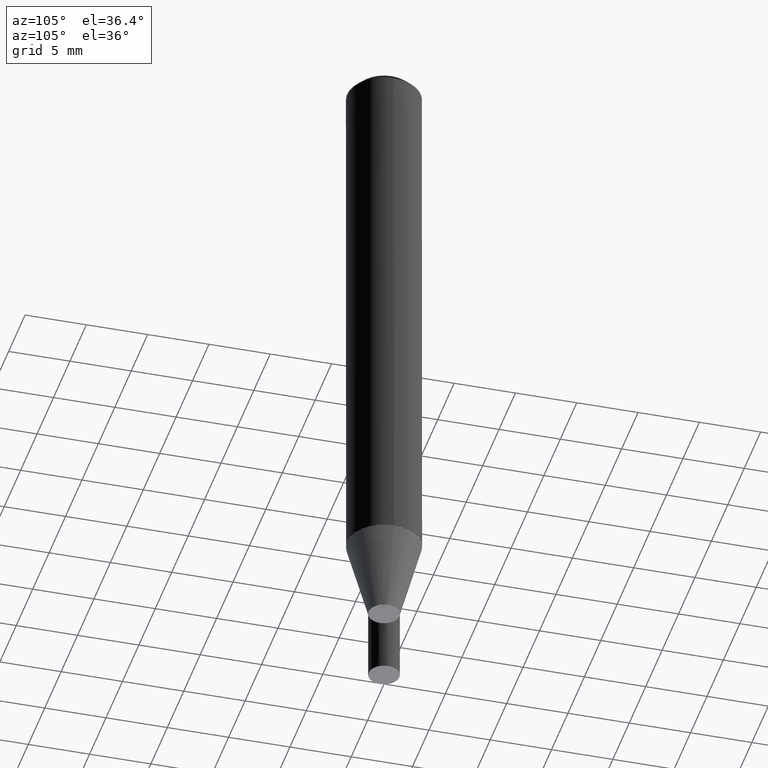
[diagram: clean part render]
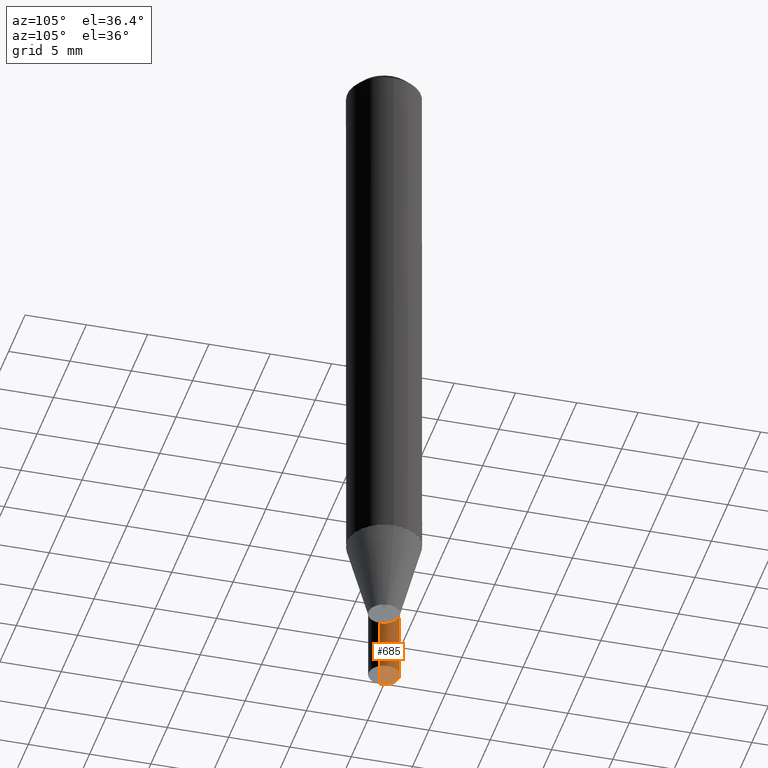
[diagram: same view with one face highlighted and labeled with its STEP entity id]
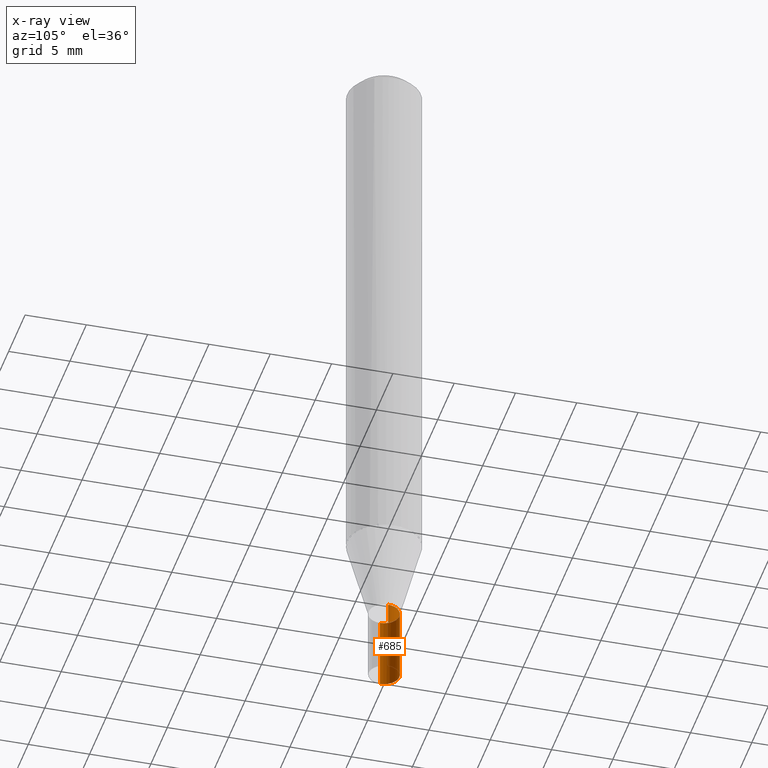
[diagram: x-ray of the same camera — body ghosted, the highlighted face saturated]
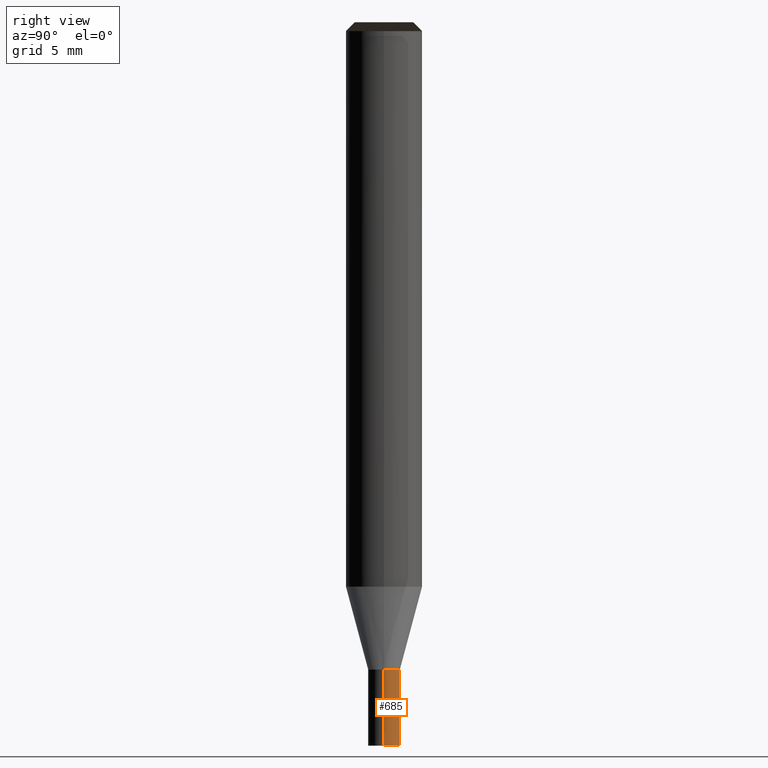
[diagram: same view with one face highlighted and labeled with its STEP entity id]
A machine part, auxiliary view. The second image highlights one B-rep face of the part: STEP entity #685.
The next image is the same camera in x-ray: the body ghosted, the highlighted face saturated — about 0% of this face is hidden behind the body in this view.
A second angle (right view) of the same face is appended — the face is thin or edge-on in the first view.
In plain terms, the highlighted face is a freeform B-spline surface patch.
Its self-contained STEP definition (entity closure, byte-faithful):
#578=CARTESIAN_POINT('',(1.25,0.0,-12.511069229));
#579=CARTESIAN_POINT('',(1.25,1.25,-12.511069229));
#580=CARTESIAN_POINT('',(0.0,1.25,-12.511069229));
#581=CARTESIAN_POINT('',(-1.25,1.25,-12.511069229));
#582=CARTESIAN_POINT('',(-1.25,0.0,-12.511069229));
#583=CARTESIAN_POINT('',(1.25,0.0,-6.531069229));
#584=CARTESIAN_POINT('',(1.25,1.25,-6.531069229));
#585=CARTESIAN_POINT('',(0.0,1.25,-6.531069229));
#586=CARTESIAN_POINT('',(-1.25,1.25,-6.531069229));
#587=CARTESIAN_POINT('',(-1.25,0.0,-6.531069229));
#666=(
BOUNDED_SURFACE()
B_SPLINE_SURFACE(1,2,(
(#578,#579,#580,#581,#582),
(#583,#584,#585,#586,#587)
), .UNSPECIFIED.,.F.,.F.,.F.)
B_SPLINE_SURFACE_WITH_KNOTS((2,2),(3,2,3),(
0.0,1.0),(
0.0,0.5,1.0), .UNSPECIFIED.)
GEOMETRIC_REPRESENTATION_ITEM()
RATIONAL_B_SPLINE_SURFACE(((1.0,0.707106781187,1.0,0.707106781187,1.0),
(1.0,0.707106781187,1.0,0.707106781187,1.0)
))
REPRESENTATION_ITEM('')
SURFACE()
);
#667=(
BOUNDED_CURVE()
B_SPLINE_CURVE(2,(#583,#584,#585,#586,#587),.UNSPECIFIED.,.F.,.F.)
B_SPLINE_CURVE_WITH_KNOTS((3,2,3),
(0.0,0.5,1.0),.UNSPECIFIED.)
CURVE()
GEOMETRIC_REPRESENTATION_ITEM()
RATIONAL_B_SPLINE_CURVE((1.0,0.707106781187,1.0,0.707106781187,1.0))
REPRESENTATION_ITEM('')
);
#668=(
BOUNDED_CURVE()
B_SPLINE_CURVE(1,(#587,#582),.UNSPECIFIED.,.F.,.F.)
B_SPLINE_CURVE_WITH_KNOTS((2,2),
(0.0,1.0),.UNSPECIFIED.)
CURVE()
GEOMETRIC_REPRESENTATION_ITEM()
RATIONAL_B_SPLINE_CURVE((1.0,1.0))
REPRESENTATION_ITEM('')
);
#669=(
BOUNDED_CURVE()
B_SPLINE_CURVE(2,(#582,#581,#580,#579,#578),.UNSPECIFIED.,.F.,.F.)
B_SPLINE_CURVE_WITH_KNOTS((3,2,3),
(0.0,0.5,1.0),.UNSPECIFIED.)
CURVE()
GEOMETRIC_REPRESENTATION_ITEM()
RATIONAL_B_SPLINE_CURVE((1.0,0.707106781187,1.0,0.707106781187,1.0))
REPRESENTATION_ITEM('')
);
#670=(
BOUNDED_CURVE()
B_SPLINE_CURVE(1,(#578,#583),.UNSPECIFIED.,.F.,.F.)
B_SPLINE_CURVE_WITH_KNOTS((2,2),
(0.0,1.0),.UNSPECIFIED.)
CURVE()
GEOMETRIC_REPRESENTATION_ITEM()
RATIONAL_B_SPLINE_CURVE((1.0,1.0))
REPRESENTATION_ITEM('')
);
#671=VERTEX_POINT('',#578);
#672=VERTEX_POINT('',#582);
#673=VERTEX_POINT('',#583);
#674=VERTEX_POINT('',#587);
#675=EDGE_CURVE('',#673,#674,#667,.T.);
#676=EDGE_CURVE('',#674,#672,#668,.T.);
#677=EDGE_CURVE('',#672,#671,#669,.T.);
#678=EDGE_CURVE('',#671,#673,#670,.T.);
#679=ORIENTED_EDGE('',*,*,#675,.T.);
#680=ORIENTED_EDGE('',*,*,#676,.T.);
#681=ORIENTED_EDGE('',*,*,#677,.T.);
#682=ORIENTED_EDGE('',*,*,#678,.T.);
#683=EDGE_LOOP('',(#679,#680,#681,#682));
#684=FACE_OUTER_BOUND('',#683,.T.);
#685=ADVANCED_FACE('',(#684),#666,.T.);